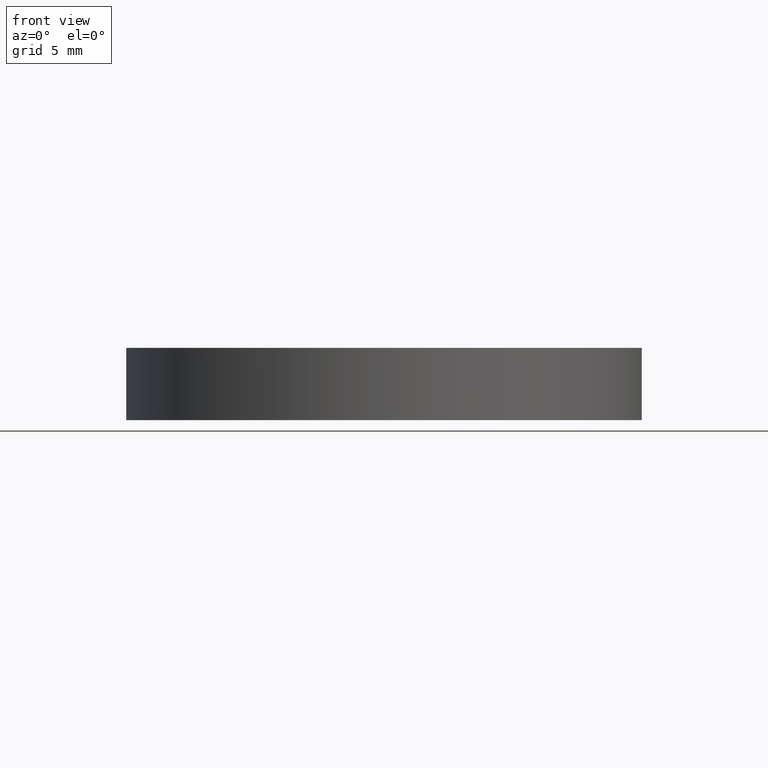
[diagram: clean part render]
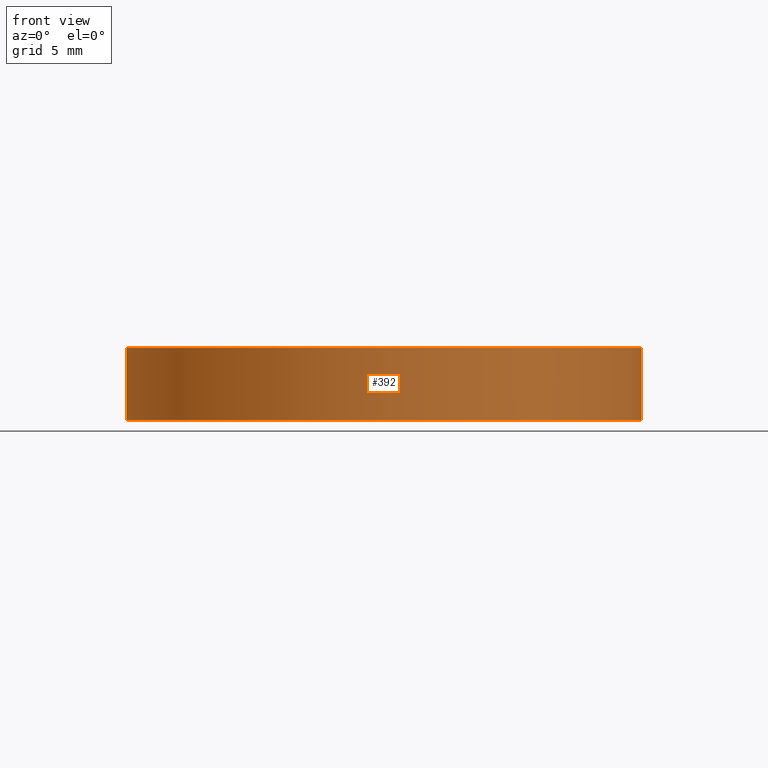
[diagram: same view with one face highlighted and labeled with its STEP entity id]
A machine part, front view. The second image highlights one B-rep face of the part: STEP entity #392.
In plain terms, the highlighted cylindrical surface (partial cylindrical patch) has radius 12.5 mm, axis along (-0, -0, -1).
Its self-contained STEP definition (entity closure, byte-faithful):
#5 = AXIS2_PLACEMENT_3D ( 'NONE', #138, #263, #65 ) ;
#11 = EDGE_CURVE ( 'NONE', #163, #415, #13, .T. ) ;
#13 = CIRCLE ( 'NONE', #111, 12.50000000000000000 ) ;
#14 = EDGE_CURVE ( 'NONE', #163, #31, #370, .T. ) ;
#18 = FACE_OUTER_BOUND ( 'NONE', #226, .T. ) ;
#19 = ORIENTED_EDGE ( 'NONE', *, *, #14, .T. ) ;
#31 = VERTEX_POINT ( 'NONE', #97 ) ;
#61 = CARTESIAN_POINT ( 'NONE',  ( 0.000000000000000000, 0.000000000000000000, 3.500000000000000000 ) ) ;
#65 = DIRECTION ( 'NONE',  ( 1.000000000000000000, 0.000000000000000000, 0.000000000000000000 ) ) ;
#70 = CARTESIAN_POINT ( 'NONE',  ( 12.50000000000000000, 1.530808498934191521E-15, 3.500000000000000000 ) ) ;
#72 = DIRECTION ( 'NONE',  ( -1.000000000000000000, 0.000000000000000000, 0.000000000000000000 ) ) ;
#94 = VECTOR ( 'NONE', #405, 1000.000000000000000 ) ;
#97 = CARTESIAN_POINT ( 'NONE',  ( -12.50000000000000000, 0.000000000000000000, 0.000000000000000000 ) ) ;
#101 = CARTESIAN_POINT ( 'NONE',  ( 12.50000000000000000, 1.530808498934191521E-15, 0.000000000000000000 ) ) ;
#102 = CARTESIAN_POINT ( 'NONE',  ( -12.50000000000000000, 0.000000000000000000, 3.500000000000000000 ) ) ;
#111 = AXIS2_PLACEMENT_3D ( 'NONE', #61, #191, #253 ) ;
#120 = VERTEX_POINT ( 'NONE', #101 ) ;
#131 = ORIENTED_EDGE ( 'NONE', *, *, #172, .F. ) ;
#138 = CARTESIAN_POINT ( 'NONE',  ( 0.000000000000000000, 0.000000000000000000, 0.000000000000000000 ) ) ;
#152 = EDGE_CURVE ( 'NONE', #31, #120, #296, .T. ) ;
#163 = VERTEX_POINT ( 'NONE', #102 ) ;
#172 = EDGE_CURVE ( 'NONE', #415, #120, #259, .T. ) ;
#186 = DIRECTION ( 'NONE',  ( -0.000000000000000000, -0.000000000000000000, -1.000000000000000000 ) ) ;
#187 = ORIENTED_EDGE ( 'NONE', *, *, #152, .T. ) ;
#191 = DIRECTION ( 'NONE',  ( 0.000000000000000000, 0.000000000000000000, 1.000000000000000000 ) ) ;
#203 = CARTESIAN_POINT ( 'NONE',  ( 12.50000000000000000, 1.530808498934191521E-15, 3.500000000000000000 ) ) ;
#215 = ORIENTED_EDGE ( 'NONE', *, *, #11, .F. ) ;
#220 = CARTESIAN_POINT ( 'NONE',  ( -12.50000000000000000, 0.000000000000000000, 3.500000000000000000 ) ) ;
#226 = EDGE_LOOP ( 'NONE', ( #131, #215, #19, #187 ) ) ;
#244 = VECTOR ( 'NONE', #294, 1000.000000000000000 ) ;
#253 = DIRECTION ( 'NONE',  ( 1.000000000000000000, 0.000000000000000000, 0.000000000000000000 ) ) ;
#259 = LINE ( 'NONE', #203, #244 ) ;
#263 = DIRECTION ( 'NONE',  ( 0.000000000000000000, 0.000000000000000000, 1.000000000000000000 ) ) ;
#294 = DIRECTION ( 'NONE',  ( -0.000000000000000000, -0.000000000000000000, -1.000000000000000000 ) ) ;
#296 = CIRCLE ( 'NONE', #5, 12.50000000000000000 ) ;
#353 = CYLINDRICAL_SURFACE ( 'NONE', #357, 12.50000000000000000 ) ;
#357 = AXIS2_PLACEMENT_3D ( 'NONE', #418, #186, #72 ) ;
#370 = LINE ( 'NONE', #220, #94 ) ;
#392 = ADVANCED_FACE ( 'NONE', ( #18 ), #353, .T. ) ;
#405 = DIRECTION ( 'NONE',  ( -0.000000000000000000, -0.000000000000000000, -1.000000000000000000 ) ) ;
#415 = VERTEX_POINT ( 'NONE', #70 ) ;
#418 = CARTESIAN_POINT ( 'NONE',  ( 0.000000000000000000, 0.000000000000000000, 3.500000000000000000 ) ) ;